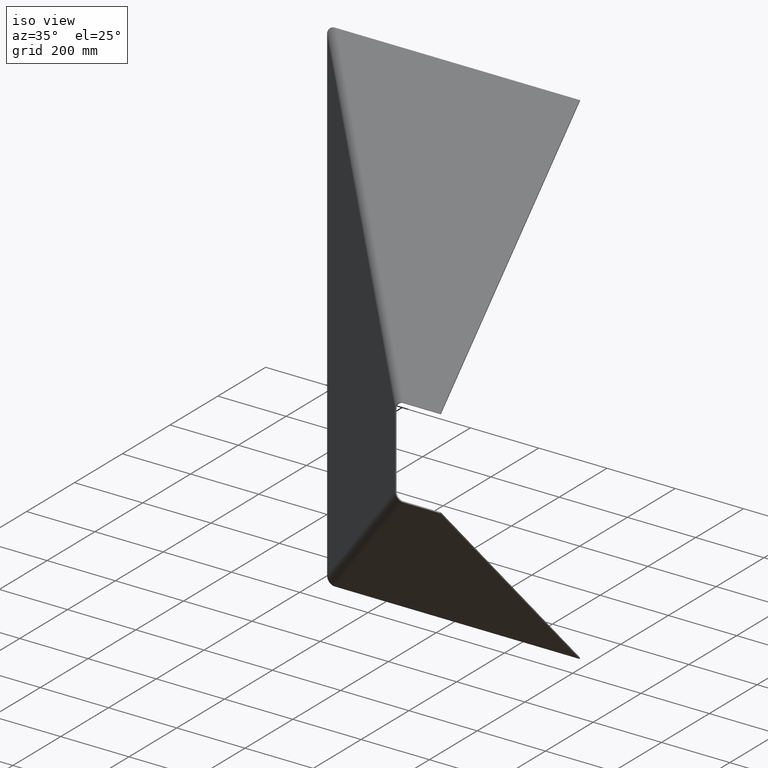
[diagram: clean part render]
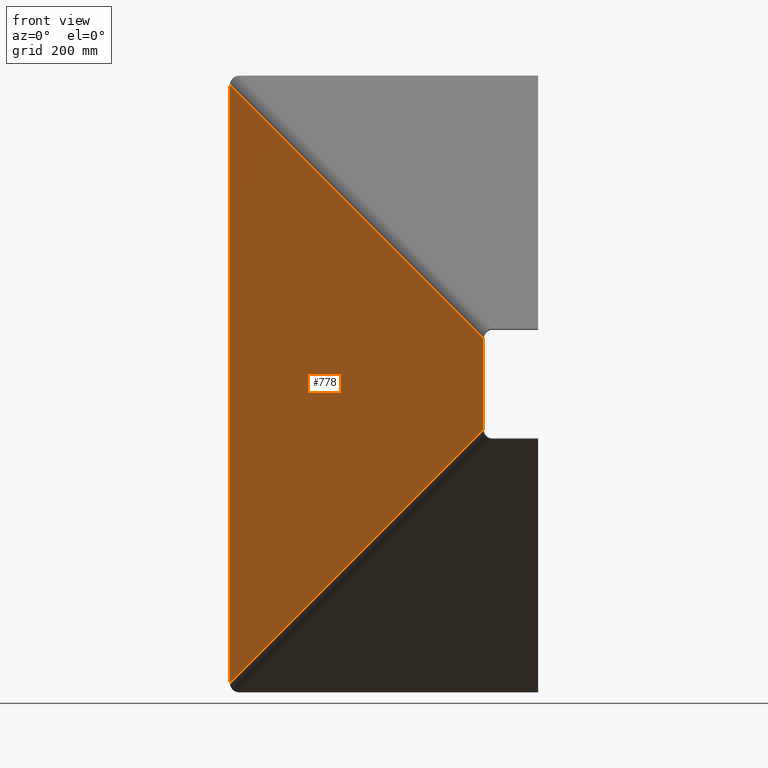
[diagram: tour spotlight — one face highlighted and labeled with its STEP entity id]
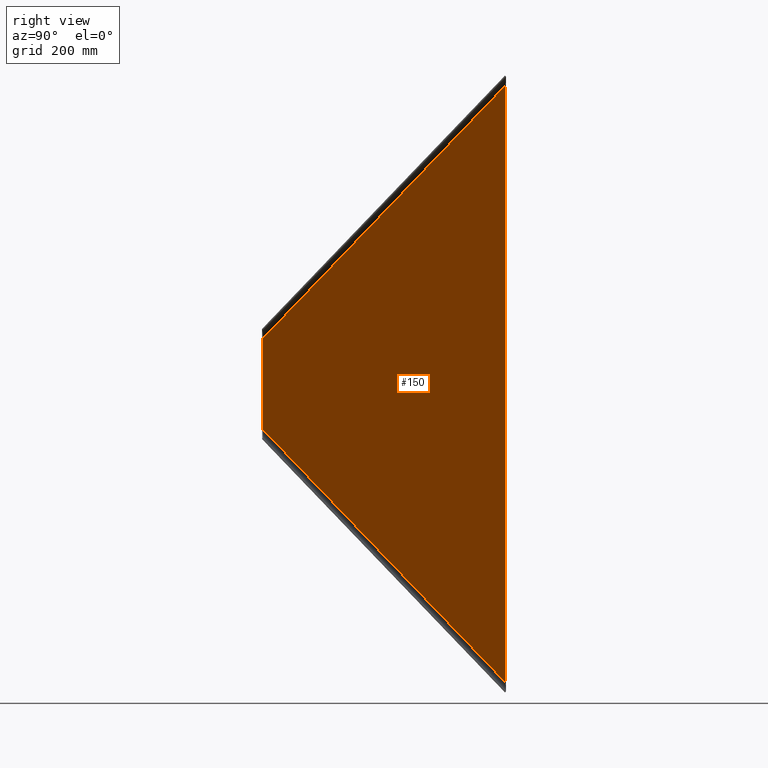
[diagram: tour spotlight — one face highlighted and labeled with its STEP entity id]
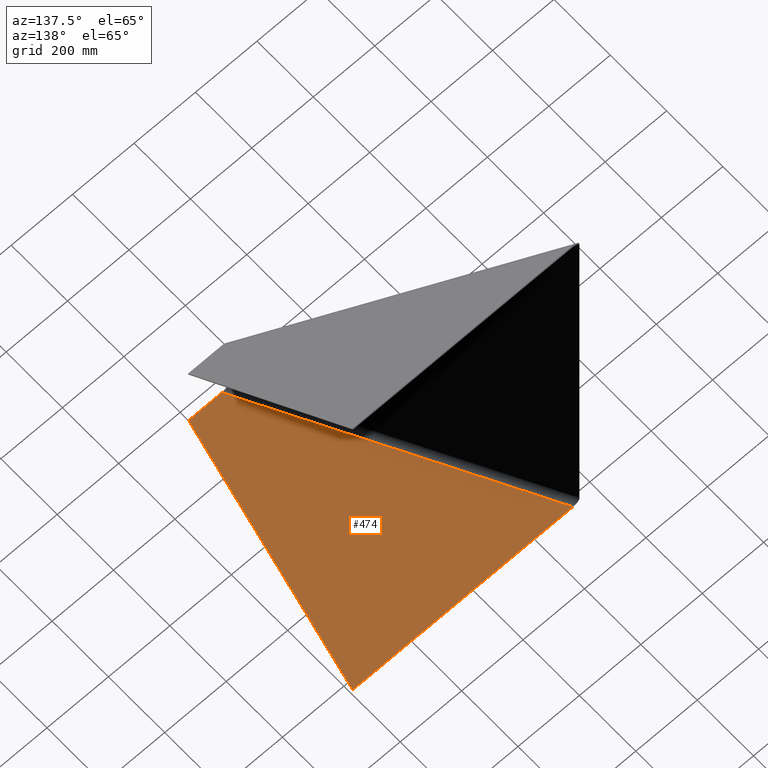
[diagram: tour spotlight — one face highlighted and labeled with its STEP entity id]
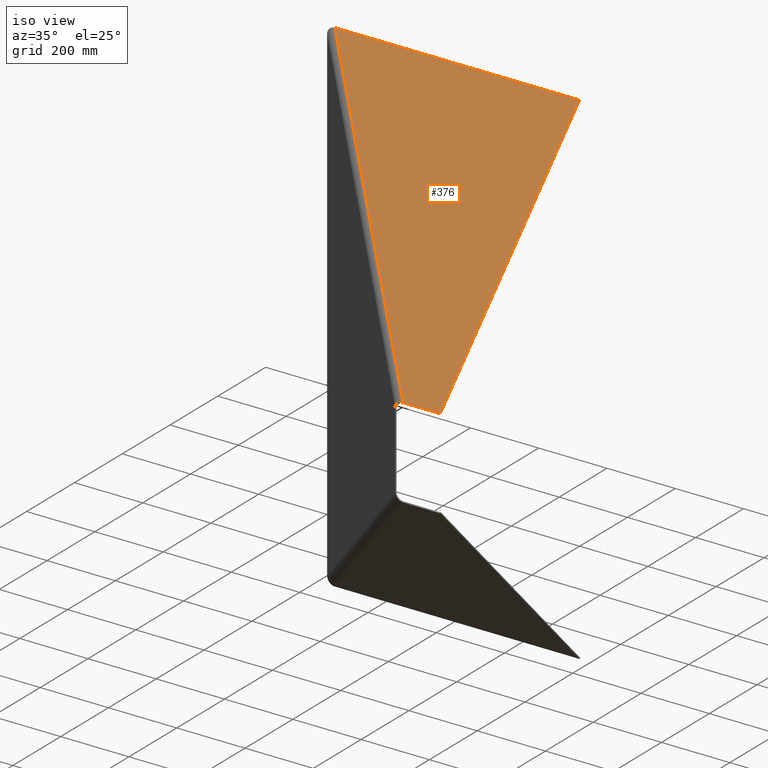
[diagram: tour spotlight — one face highlighted and labeled with its STEP entity id]
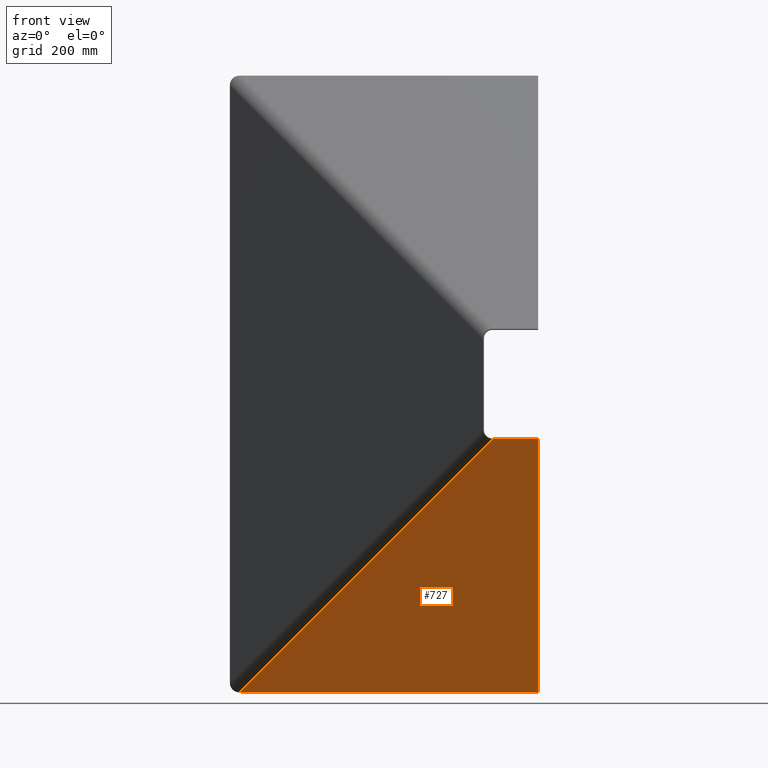
[diagram: tour spotlight — one face highlighted and labeled with its STEP entity id]
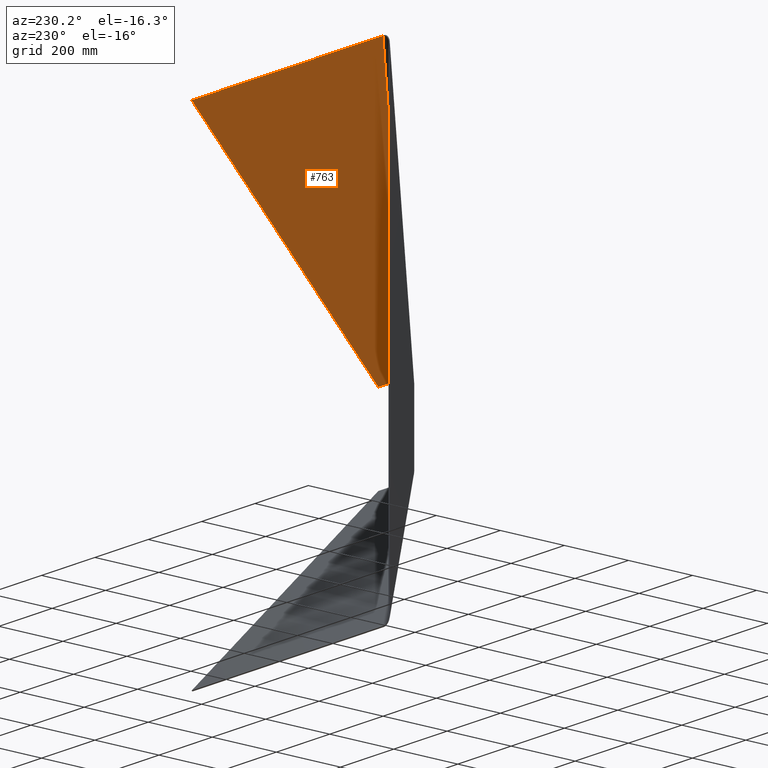
[diagram: tour spotlight — one face highlighted and labeled with its STEP entity id]
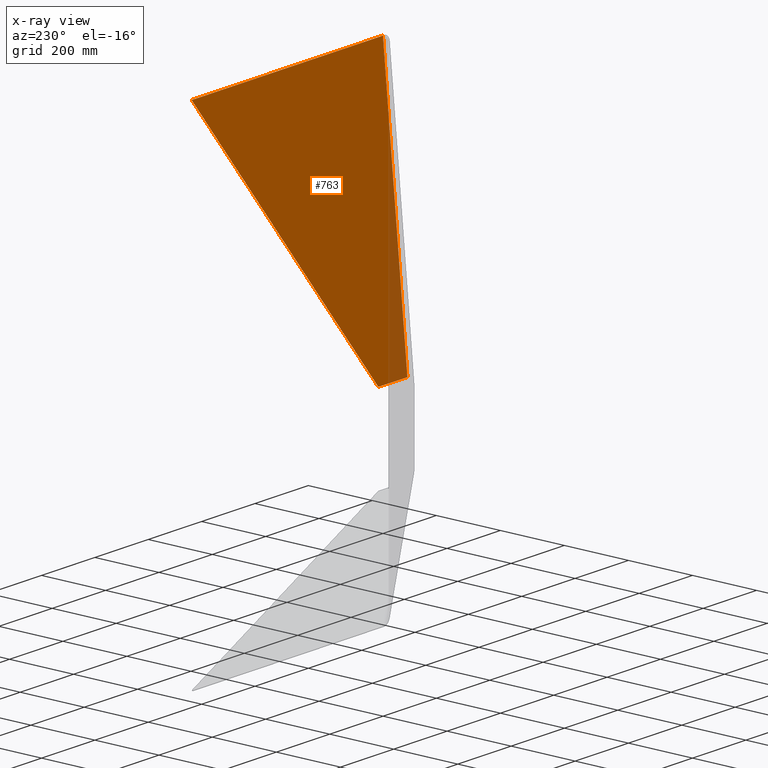
[diagram: x-ray of the same camera — body ghosted, this tour face saturated]
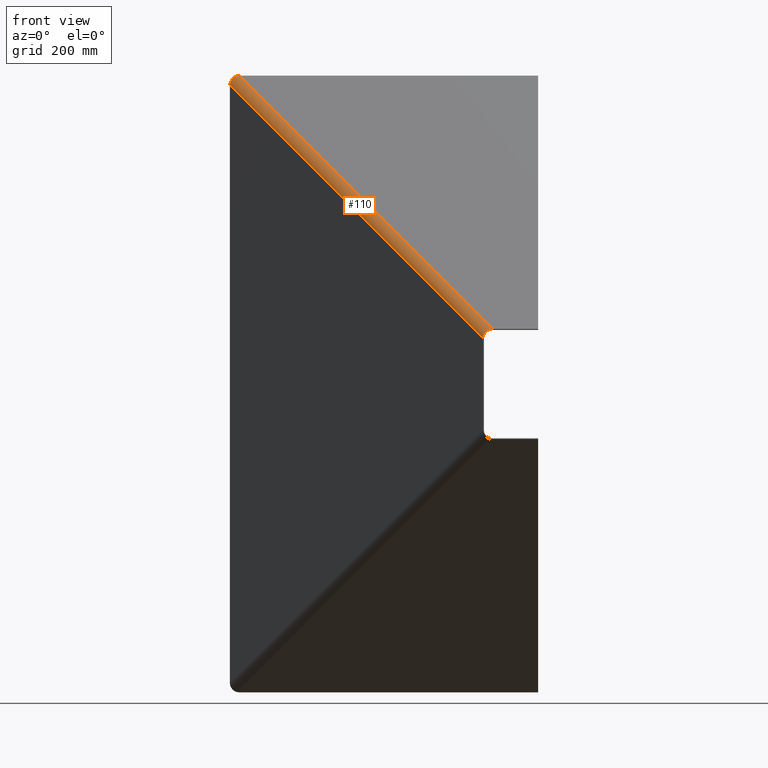
[diagram: tour spotlight — one face highlighted and labeled with its STEP entity id]
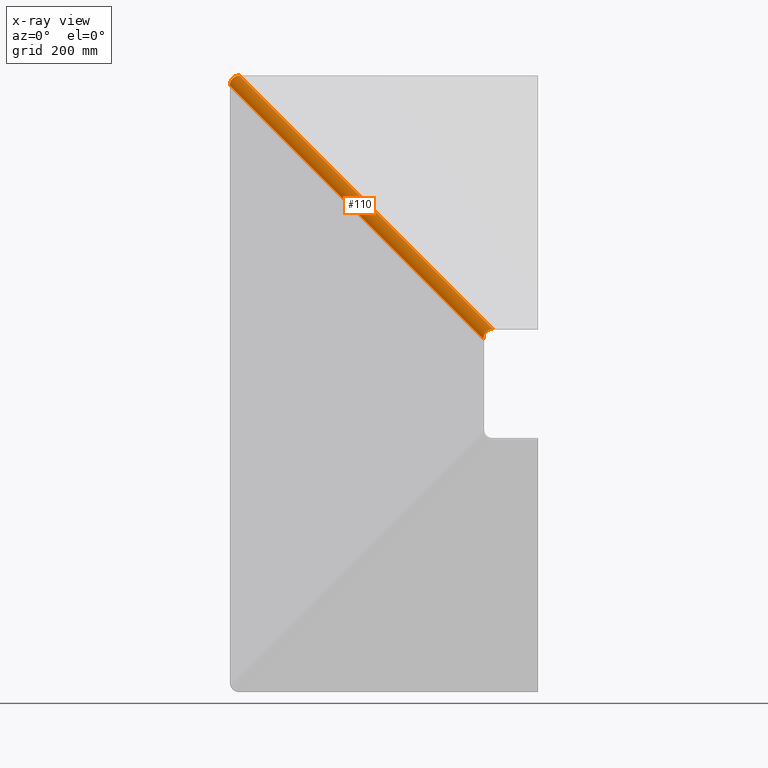
[diagram: x-ray of the same camera — body ghosted, this tour face saturated]
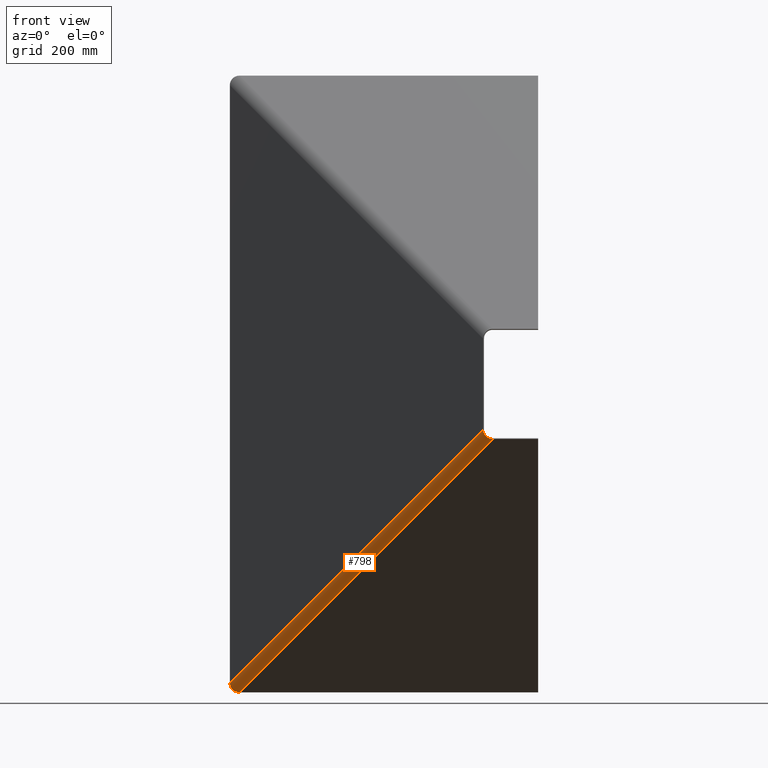
[diagram: tour spotlight — one face highlighted and labeled with its STEP entity id]
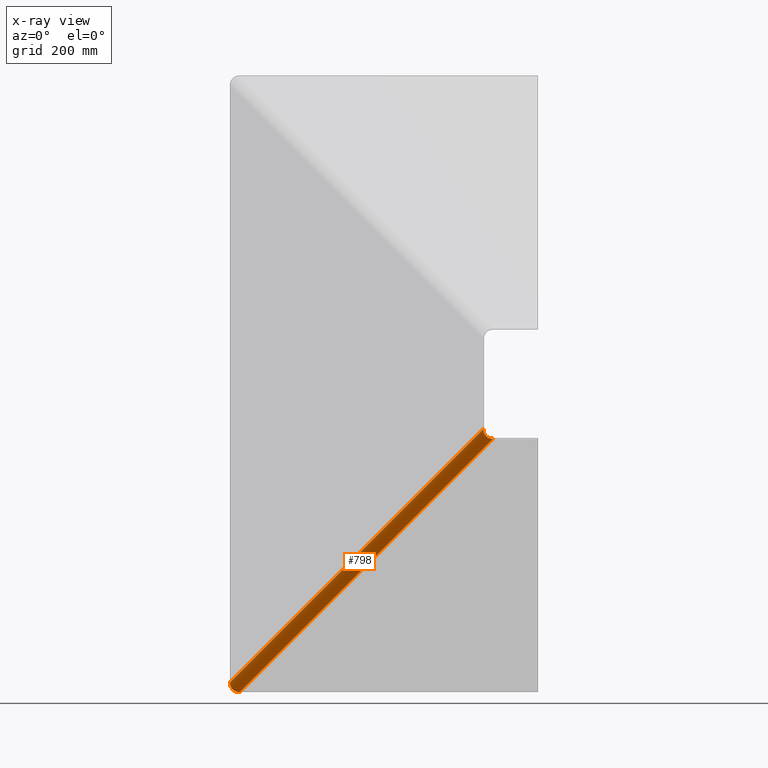
[diagram: x-ray of the same camera — body ghosted, this tour face saturated]
A machine part: a face-by-face anatomy tour. The part has 22 B-rep faces; the first image is the clean iso view, then the 8 largest visible faces are spotlighted one at a time (largest first), each with its STEP entity span.

Face 1 — front view, entity #778. In plain terms, the highlighted planar face has unit normal (0.6921, 0.7218, 0).
Definition (entity closure, byte-faithful):
#10 = ORIENTED_EDGE ( 'NONE', *, *, #79, .F. ) ;
#20 = AXIS2_PLACEMENT_3D ( 'NONE', #682, #731, #457 ) ;
#34 = CARTESIAN_POINT ( 'NONE',  ( -132.0000000000000000, 46.00000000000000000, 109.0000000000000142 ) ) ;
#79 = EDGE_CURVE ( 'NONE', #95, #362, #395, .T. ) ;
#95 = VERTEX_POINT ( 'NONE', #171 ) ;
#111 = CARTESIAN_POINT ( 'NONE',  ( -131.9999999999999716, 46.00000000000000000, -108.9999999999999574 ) ) ;
#125 = DIRECTION ( 'NONE',  ( 0.5852604681659182573, -0.5611954818104119003, 0.5852604681659184793 ) ) ;
#145 = VECTOR ( 'NONE', #201, 1000.000000000000000 ) ;
#171 = CARTESIAN_POINT ( 'NONE',  ( -739.9999999999998863, 629.0000000000000000, 717.0000000000001137 ) ) ;
#189 = CARTESIAN_POINT ( 'NONE',  ( -739.9999999999997726, 629.0000000000000000, 717.0000000000001137 ) ) ;
#201 = DIRECTION ( 'NONE',  ( -1.273191542001326317E-16, -0.000000000000000000, 1.000000000000000000 ) ) ;
#221 = FACE_OUTER_BOUND ( 'NONE', #332, .T. ) ;
#234 = VECTOR ( 'NONE', #125, 1000.000000000000114 ) ;
#262 = DIRECTION ( 'NONE',  ( 0.000000000000000000, 0.000000000000000000, -1.000000000000000000 ) ) ;
#288 = VECTOR ( 'NONE', #600, 1000.000000000000114 ) ;
#332 = EDGE_LOOP ( 'NONE', ( #443, #650, #10, #598 ) ) ;
#337 = CARTESIAN_POINT ( 'NONE',  ( -435.9999999999999432, 337.5000000000000000, 413.0000000000000568 ) ) ;
#359 = VERTEX_POINT ( 'NONE', #111 ) ;
#362 = VERTEX_POINT ( 'NONE', #34 ) ;
#387 = EDGE_CURVE ( 'NONE', #688, #359, #771, .T. ) ;
#395 = LINE ( 'NONE', #337, #288 ) ;
#443 = ORIENTED_EDGE ( 'NONE', *, *, #387, .T. ) ;
#457 = DIRECTION ( 'NONE',  ( -0.7217904954700603559, 0.6921116099655350018, 0.000000000000000000 ) ) ;
#526 = LINE ( 'NONE', #780, #145 ) ;
#548 = VECTOR ( 'NONE', #262, 1000.000000000000000 ) ;
#570 = CARTESIAN_POINT ( 'NONE',  ( -739.9999999999997726, 629.0000000000000000, -717.0000000000000000 ) ) ;
#579 = LINE ( 'NONE', #189, #548 ) ;
#598 = ORIENTED_EDGE ( 'NONE', *, *, #693, .T. ) ;
#600 = DIRECTION ( 'NONE',  ( 0.5852604681659182573, -0.5611954818104119003, -0.5852604681659184793 ) ) ;
#650 = ORIENTED_EDGE ( 'NONE', *, *, #704, .T. ) ;
#682 = CARTESIAN_POINT ( 'NONE',  ( -40.25069867930943701, -41.97671491770176999, 0.000000000000000000 ) ) ;
#688 = VERTEX_POINT ( 'NONE', #768 ) ;
#693 = EDGE_CURVE ( 'NONE', #95, #688, #579, .T. ) ;
#704 = EDGE_CURVE ( 'NONE', #359, #362, #526, .T. ) ;
#731 = DIRECTION ( 'NONE',  ( 0.6921116099655350018, 0.7217904954700603559, 0.000000000000000000 ) ) ;
#768 = CARTESIAN_POINT ( 'NONE',  ( -739.9999999999997726, 629.0000000000000000, -717.0000000000001137 ) ) ;
#771 = LINE ( 'NONE', #570, #234 ) ;
#778 = ADVANCED_FACE ( 'NONE', ( #221 ), #802, .F. ) ;
#780 = CARTESIAN_POINT ( 'NONE',  ( -132.0000000000000000, 46.00000000000000000, 109.0000000000000142 ) ) ;
#802 = PLANE ( 'NONE',  #20 ) ;

Face 2 — right view, entity #150. In plain terms, the highlighted planar face has unit normal (0.6921, 0.7218, 0).
Definition (entity closure, byte-faithful):
#24 = EDGE_CURVE ( 'NONE', #176, #299, #622, .T. ) ;
#50 = CARTESIAN_POINT ( 'NONE',  ( -737.9236651701032770, 631.1653714864102085, 0.000000000000000000 ) ) ;
#75 = CARTESIAN_POINT ( 'NONE',  ( -737.9236651701032770, 631.1653714864100948, -717.0000000000001137 ) ) ;
#83 = ORIENTED_EDGE ( 'NONE', *, *, #24, .F. ) ;
#86 = AXIS2_PLACEMENT_3D ( 'NONE', #558, #303, #495 ) ;
#88 = VERTEX_POINT ( 'NONE', #787 ) ;
#104 = DIRECTION ( 'NONE',  ( -0.000000000000000000, 0.000000000000000000, -1.000000000000000000 ) ) ;
#122 = CARTESIAN_POINT ( 'NONE',  ( -737.9236651701032770, 631.1653714864102085, 717.0000000000001137 ) ) ;
#126 = EDGE_CURVE ( 'NONE', #299, #88, #687, .T. ) ;
#129 = VECTOR ( 'NONE', #627, 1000.000000000000000 ) ;
#134 = CARTESIAN_POINT ( 'NONE',  ( -535.2569985034367619, 436.8320381530768373, 514.3333333333333712 ) ) ;
#139 = EDGE_CURVE ( 'NONE', #151, #176, #164, .T. ) ;
#150 = ADVANCED_FACE ( 'NONE', ( #415 ), #233, .T. ) ;
#151 = VERTEX_POINT ( 'NONE', #752 ) ;
#164 = LINE ( 'NONE', #50, #448 ) ;
#176 = VERTEX_POINT ( 'NONE', #696 ) ;
#217 = CARTESIAN_POINT ( 'NONE',  ( -129.9236651701034191, 48.16537148641010191, -108.9999999999999574 ) ) ;
#233 = PLANE ( 'NONE',  #86 ) ;
#243 = CARTESIAN_POINT ( 'NONE',  ( -129.9236651701034191, 48.16537148641010191, -108.9999999999999574 ) ) ;
#247 = B_SPLINE_CURVE_WITH_KNOTS ( 'NONE', 3,
 ( #122, #134, #713, #323 ),
 .UNSPECIFIED., .F., .F.,
 ( 4, 4 ),
 ( 0.000000000000000000, 1.000000000000000000 ),
 .UNSPECIFIED. ) ;
#277 = ORIENTED_EDGE ( 'NONE', *, *, #126, .F. ) ;
#280 = EDGE_LOOP ( 'NONE', ( #83, #816, #757, #277 ) ) ;
#299 = VERTEX_POINT ( 'NONE', #217 ) ;
#303 = DIRECTION ( 'NONE',  ( 0.6921116099655350018, 0.7217904954700603559, 0.000000000000000000 ) ) ;
#323 = CARTESIAN_POINT ( 'NONE',  ( -129.9236651701034475, 48.16537148641014454, 109.0000000000000142 ) ) ;
#331 = CARTESIAN_POINT ( 'NONE',  ( -332.5903318367699626, 242.4987048197434660, -311.6666666666666288 ) ) ;
#352 = CARTESIAN_POINT ( 'NONE',  ( -129.9236651701034191, 48.16537148641010191, 0.000000000000000000 ) ) ;
#415 = FACE_OUTER_BOUND ( 'NONE', #280, .T. ) ;
#448 = VECTOR ( 'NONE', #104, 1000.000000000000000 ) ;
#495 = DIRECTION ( 'NONE',  ( -0.7217904954700603559, 0.6921116099655350018, 0.000000000000000000 ) ) ;
#558 = CARTESIAN_POINT ( 'NONE',  ( -38.17436384941283478, -39.81134343129158282, 0.000000000000000000 ) ) ;
#622 = B_SPLINE_CURVE_WITH_KNOTS ( 'NONE', 3,
 ( #75, #643, #331, #243 ),
 .UNSPECIFIED., .F., .F.,
 ( 4, 4 ),
 ( 0.000000000000000000, 1.000000000000000000 ),
 .UNSPECIFIED. ) ;
#627 = DIRECTION ( 'NONE',  ( 0.000000000000000000, -0.000000000000000000, 1.000000000000000000 ) ) ;
#643 = CARTESIAN_POINT ( 'NONE',  ( -535.2569985034366482, 436.8320381530768373, -514.3333333333332575 ) ) ;
#647 = EDGE_CURVE ( 'NONE', #151, #88, #247, .T. ) ;
#687 = LINE ( 'NONE', #352, #129 ) ;
#696 = CARTESIAN_POINT ( 'NONE',  ( -737.9236651701032770, 631.1653714864100948, -717.0000000000001137 ) ) ;
#713 = CARTESIAN_POINT ( 'NONE',  ( -332.5903318367700194, 242.4987048197434660, 311.6666666666666856 ) ) ;
#752 = CARTESIAN_POINT ( 'NONE',  ( -737.9236651701032770, 631.1653714864102085, 717.0000000000001137 ) ) ;
#757 = ORIENTED_EDGE ( 'NONE', *, *, #647, .T. ) ;
#787 = CARTESIAN_POINT ( 'NONE',  ( -129.9236651701034475, 48.16537148641014454, 109.0000000000000142 ) ) ;
#816 = ORIENTED_EDGE ( 'NONE', *, *, #139, .F. ) ;

Face 3 — auxiliary view, entity #474. In plain terms, the highlighted planar face has unit normal (0, -0.7218, -0.6921).
Definition (entity closure, byte-faithful):
#29 = ORIENTED_EDGE ( 'NONE', *, *, #98, .F. ) ;
#55 = EDGE_CURVE ( 'NONE', #392, #403, #437, .T. ) ;
#98 = EDGE_CURVE ( 'NONE', #404, #463, #691, .T. ) ;
#100 = ORIENTED_EDGE ( 'NONE', *, *, #224, .T. ) ;
#102 = DIRECTION ( 'NONE',  ( 0.000000000000000000, -0.7217904954700604669, -0.6921116099655350018 ) ) ;
#152 = DIRECTION ( 'NONE',  ( -0.000000000000000000, -0.6921116099655348908, 0.7217904954700603559 ) ) ;
#169 = CARTESIAN_POINT ( 'NONE',  ( -2.220446049250314091E-13, 631.1653714864104359, -737.9236651701035044 ) ) ;
#182 = VECTOR ( 'NONE', #766, 1000.000000000000000 ) ;
#185 = AXIS2_PLACEMENT_3D ( 'NONE', #481, #102, #739 ) ;
#215 = LINE ( 'NONE', #470, #665 ) ;
#224 = EDGE_CURVE ( 'NONE', #404, #403, #493, .T. ) ;
#283 = EDGE_CURVE ( 'NONE', #463, #392, #215, .T. ) ;
#297 = PLANE ( 'NONE',  #185 ) ;
#307 = FACE_OUTER_BOUND ( 'NONE', #380, .T. ) ;
#343 = ORIENTED_EDGE ( 'NONE', *, *, #55, .F. ) ;
#344 = CARTESIAN_POINT ( 'NONE',  ( -514.3333333333331439, 436.8320381530768373, -535.2569985034367619 ) ) ;
#379 = CARTESIAN_POINT ( 'NONE',  ( 0.000000000000000000, 48.16537148641020138, -129.9236651701034475 ) ) ;
#380 = EDGE_LOOP ( 'NONE', ( #543, #29, #100, #343 ) ) ;
#392 = VERTEX_POINT ( 'NONE', #379 ) ;
#403 = VERTEX_POINT ( 'NONE', #582 ) ;
#404 = VERTEX_POINT ( 'NONE', #514 ) ;
#437 = LINE ( 'NONE', #701, #182 ) ;
#461 = CARTESIAN_POINT ( 'NONE',  ( -717.0000000000000000, 631.1653714864104359, -737.9236651701035044 ) ) ;
#463 = VERTEX_POINT ( 'NONE', #169 ) ;
#464 = VECTOR ( 'NONE', #737, 1000.000000000000000 ) ;
#470 = CARTESIAN_POINT ( 'NONE',  ( -2.220446049250314091E-13, -39.81134343129154018, -38.17436384941278504 ) ) ;
#474 = ADVANCED_FACE ( 'NONE', ( #307 ), #297, .F. ) ;
#481 = CARTESIAN_POINT ( 'NONE',  ( 0.000000000000000000, -39.81134343129154018, -38.17436384941278504 ) ) ;
#493 = B_SPLINE_CURVE_WITH_KNOTS ( 'NONE', 3,
 ( #461, #344, #605, #781 ),
 .UNSPECIFIED., .F., .F.,
 ( 4, 4 ),
 ( 0.000000000000000000, 1.000000000000000000 ),
 .UNSPECIFIED. ) ;
#514 = CARTESIAN_POINT ( 'NONE',  ( -717.0000000000000000, 631.1653714864104359, -737.9236651701035044 ) ) ;
#543 = ORIENTED_EDGE ( 'NONE', *, *, #283, .F. ) ;
#550 = CARTESIAN_POINT ( 'NONE',  ( 0.000000000000000000, 631.1653714864104359, -737.9236651701035044 ) ) ;
#582 = CARTESIAN_POINT ( 'NONE',  ( -109.0000000000000426, 48.16537148641020138, -129.9236651701034475 ) ) ;
#605 = CARTESIAN_POINT ( 'NONE',  ( -311.6666666666665151, 242.4987048197434660, -332.5903318367700763 ) ) ;
#665 = VECTOR ( 'NONE', #152, 1000.000000000000114 ) ;
#691 = LINE ( 'NONE', #550, #464 ) ;
#701 = CARTESIAN_POINT ( 'NONE',  ( 0.000000000000000000, 48.16537148641020138, -129.9236651701034475 ) ) ;
#737 = DIRECTION ( 'NONE',  ( 1.000000000000000000, 0.000000000000000000, 0.000000000000000000 ) ) ;
#739 = DIRECTION ( 'NONE',  ( 0.000000000000000000, 0.6921116099655348908, -0.7217904954700603559 ) ) ;
#766 = DIRECTION ( 'NONE',  ( -1.000000000000000000, -0.000000000000000000, -0.000000000000000000 ) ) ;
#781 = CARTESIAN_POINT ( 'NONE',  ( -109.0000000000000426, 48.16537148641020138, -129.9236651701034475 ) ) ;

Face 4 — iso view, entity #376. In plain terms, the highlighted planar face has unit normal (0, -0.7218, 0.6921).
Definition (entity closure, byte-faithful):
#17 = DIRECTION ( 'NONE',  ( 1.000000000000000000, 0.000000000000000000, 0.000000000000000000 ) ) ;
#23 = LINE ( 'NONE', #750, #406 ) ;
#101 = VECTOR ( 'NONE', #428, 1000.000000000000114 ) ;
#107 = DIRECTION ( 'NONE',  ( 0.5852604681659181463, -0.5611954818104117892, -0.5852604681659184793 ) ) ;
#113 = LINE ( 'NONE', #372, #320 ) ;
#115 = CARTESIAN_POINT ( 'NONE',  ( 0.000000000000000000, -41.97671491770171315, 40.25069867930936596 ) ) ;
#156 = FACE_OUTER_BOUND ( 'NONE', #595, .T. ) ;
#161 = EDGE_CURVE ( 'NONE', #532, #496, #756, .T. ) ;
#172 = ORIENTED_EDGE ( 'NONE', *, *, #614, .T. ) ;
#175 = CARTESIAN_POINT ( 'NONE',  ( -9.307315673519885144E-14, 629.0000000000000000, 740.0000000000000000 ) ) ;
#252 = DIRECTION ( 'NONE',  ( 0.000000000000000000, -0.6921116099655347798, -0.7217904954700604669 ) ) ;
#263 = ORIENTED_EDGE ( 'NONE', *, *, #161, .F. ) ;
#282 = PLANE ( 'NONE',  #638 ) ;
#285 = ORIENTED_EDGE ( 'NONE', *, *, #586, .T. ) ;
#320 = VECTOR ( 'NONE', #641, 1000.000000000000000 ) ;
#342 = EDGE_CURVE ( 'NONE', #505, #524, #23, .T. ) ;
#370 = VECTOR ( 'NONE', #17, 1000.000000000000000 ) ;
#372 = CARTESIAN_POINT ( 'NONE',  ( -9.307315673519885144E-14, 629.0000000000000000, 740.0000000000000000 ) ) ;
#376 = ADVANCED_FACE ( 'NONE', ( #156 ), #282, .T. ) ;
#406 = VECTOR ( 'NONE', #107, 1000.000000000000000 ) ;
#422 = CARTESIAN_POINT ( 'NONE',  ( -716.9999999999998863, 629.0000000000000000, 740.0000000000002274 ) ) ;
#428 = DIRECTION ( 'NONE',  ( 1.104923024915489591E-16, -0.6921116099655348908, -0.7217904954700603559 ) ) ;
#433 = DIRECTION ( 'NONE',  ( 0.000000000000000000, -0.7217904954700604669, 0.6921116099655347798 ) ) ;
#446 = LINE ( 'NONE', #775, #370 ) ;
#468 = ORIENTED_EDGE ( 'NONE', *, *, #342, .T. ) ;
#496 = VERTEX_POINT ( 'NONE', #749 ) ;
#505 = VERTEX_POINT ( 'NONE', #422 ) ;
#524 = VERTEX_POINT ( 'NONE', #560 ) ;
#532 = VERTEX_POINT ( 'NONE', #758 ) ;
#560 = CARTESIAN_POINT ( 'NONE',  ( -109.0000000000000142, 46.00000000000000000, 132.0000000000000000 ) ) ;
#586 = EDGE_CURVE ( 'NONE', #532, #505, #113, .T. ) ;
#595 = EDGE_LOOP ( 'NONE', ( #468, #172, #263, #285 ) ) ;
#614 = EDGE_CURVE ( 'NONE', #524, #496, #446, .T. ) ;
#638 = AXIS2_PLACEMENT_3D ( 'NONE', #115, #433, #252 ) ;
#641 = DIRECTION ( 'NONE',  ( -1.000000000000000000, 0.000000000000000000, 3.096856414575054289E-16 ) ) ;
#749 = CARTESIAN_POINT ( 'NONE',  ( 2.465190328815661892E-29, 45.99999999999981526, 131.9999999999998863 ) ) ;
#750 = CARTESIAN_POINT ( 'NONE',  ( -716.9999999999998863, 629.0000000000000000, 740.0000000000002274 ) ) ;
#756 = LINE ( 'NONE', #175, #101 ) ;
#758 = CARTESIAN_POINT ( 'NONE',  ( -9.307315673519885144E-14, 629.0000000000000000, 740.0000000000000000 ) ) ;
#775 = CARTESIAN_POINT ( 'NONE',  ( -109.0000000000000142, 46.00000000000000000, 132.0000000000000000 ) ) ;

Face 5 — front view, entity #727. In plain terms, the highlighted planar face has unit normal (0, -0.7218, -0.6921).
Definition (entity closure, byte-faithful):
#22 = ORIENTED_EDGE ( 'NONE', *, *, #301, .T. ) ;
#31 = CARTESIAN_POINT ( 'NONE',  ( -1.849216666712503261E-13, 629.0000000000000000, -740.0000000000000000 ) ) ;
#137 = PLANE ( 'NONE',  #723 ) ;
#141 = CARTESIAN_POINT ( 'NONE',  ( -108.9999999999999858, 46.00000000000000000, -132.0000000000000000 ) ) ;
#149 = CARTESIAN_POINT ( 'NONE',  ( -412.9999999999998863, 337.5000000000000000, -436.0000000000000000 ) ) ;
#153 = VECTOR ( 'NONE', #608, 1000.000000000000114 ) ;
#155 = ORIENTED_EDGE ( 'NONE', *, *, #275, .F. ) ;
#203 = LINE ( 'NONE', #31, #803 ) ;
#225 = LINE ( 'NONE', #804, #734 ) ;
#235 = ORIENTED_EDGE ( 'NONE', *, *, #594, .T. ) ;
#260 = LINE ( 'NONE', #141, #509 ) ;
#275 = EDGE_CURVE ( 'NONE', #715, #634, #538, .T. ) ;
#301 = EDGE_CURVE ( 'NONE', #717, #634, #260, .T. ) ;
#314 = EDGE_CURVE ( 'NONE', #624, #717, #203, .T. ) ;
#348 = DIRECTION ( 'NONE',  ( -1.000000000000000000, -0.000000000000000000, -0.000000000000000000 ) ) ;
#378 = DIRECTION ( 'NONE',  ( 0.000000000000000000, -0.7217904954700604669, -0.6921116099655350018 ) ) ;
#381 = CARTESIAN_POINT ( 'NONE',  ( -716.9999999999997726, 629.0000000000000000, -740.0000000000000000 ) ) ;
#391 = DIRECTION ( 'NONE',  ( 0.000000000000000000, 0.6921116099655348908, -0.7217904954700603559 ) ) ;
#416 = EDGE_LOOP ( 'NONE', ( #707, #22, #155, #235 ) ) ;
#453 = CARTESIAN_POINT ( 'NONE',  ( 0.000000000000000000, 46.00000000000000000, -132.0000000000000000 ) ) ;
#509 = VECTOR ( 'NONE', #348, 1000.000000000000000 ) ;
#529 = DIRECTION ( 'NONE',  ( 2.195307588976827744E-16, -0.6921116099655348908, 0.7217904954700603559 ) ) ;
#538 = LINE ( 'NONE', #149, #153 ) ;
#585 = CARTESIAN_POINT ( 'NONE',  ( 0.000000000000000000, -41.97671491770172736, -40.25069867930938727 ) ) ;
#594 = EDGE_CURVE ( 'NONE', #715, #624, #225, .T. ) ;
#608 = DIRECTION ( 'NONE',  ( 0.5852604681659182573, -0.5611954818104119003, 0.5852604681659184793 ) ) ;
#624 = VERTEX_POINT ( 'NONE', #710 ) ;
#634 = VERTEX_POINT ( 'NONE', #655 ) ;
#655 = CARTESIAN_POINT ( 'NONE',  ( -108.9999999999999858, 46.00000000000000000, -132.0000000000000000 ) ) ;
#680 = DIRECTION ( 'NONE',  ( 1.000000000000000000, 0.000000000000000000, 0.000000000000000000 ) ) ;
#707 = ORIENTED_EDGE ( 'NONE', *, *, #314, .T. ) ;
#710 = CARTESIAN_POINT ( 'NONE',  ( -2.220446049250313081E-13, 629.0000000000000000, -740.0000000000000000 ) ) ;
#715 = VERTEX_POINT ( 'NONE', #381 ) ;
#716 = FACE_OUTER_BOUND ( 'NONE', #416, .T. ) ;
#717 = VERTEX_POINT ( 'NONE', #453 ) ;
#723 = AXIS2_PLACEMENT_3D ( 'NONE', #585, #378, #391 ) ;
#727 = ADVANCED_FACE ( 'NONE', ( #716 ), #137, .T. ) ;
#734 = VECTOR ( 'NONE', #680, 1000.000000000000000 ) ;
#803 = VECTOR ( 'NONE', #529, 1000.000000000000114 ) ;
#804 = CARTESIAN_POINT ( 'NONE',  ( -716.9999999999997726, 629.0000000000000000, -740.0000000000000000 ) ) ;

Face 6 — auxiliary view, entity #763. An x-ray twin of the same camera follows (body ghosted, this face saturated) — the face is partly hidden behind the body. In plain terms, the highlighted planar face has unit normal (0, -0.7218, 0.6921).
Definition (entity closure, byte-faithful):
#13 = EDGE_LOOP ( 'NONE', ( #606, #121, #480, #705 ) ) ;
#46 = VERTEX_POINT ( 'NONE', #578 ) ;
#52 = CARTESIAN_POINT ( 'NONE',  ( 0.000000000000000000, 48.16537148641020138, 129.9236651701034475 ) ) ;
#59 = CARTESIAN_POINT ( 'NONE',  ( -717.0000000000001137, 631.1653714864103222, 737.9236651701036180 ) ) ;
#93 = PLANE ( 'NONE',  #250 ) ;
#121 = ORIENTED_EDGE ( 'NONE', *, *, #790, .F. ) ;
#138 = VERTEX_POINT ( 'NONE', #295 ) ;
#154 = DIRECTION ( 'NONE',  ( 0.000000000000000000, -0.7217904954700604669, 0.6921116099655347798 ) ) ;
#162 = CARTESIAN_POINT ( 'NONE',  ( -109.0000000000000711, 48.16537148641020138, 129.9236651701034475 ) ) ;
#198 = VECTOR ( 'NONE', #408, 1000.000000000000000 ) ;
#205 = FACE_OUTER_BOUND ( 'NONE', #13, .T. ) ;
#207 = DIRECTION ( 'NONE',  ( 0.000000000000000000, -0.6921116099655347798, -0.7217904954700604669 ) ) ;
#214 = EDGE_CURVE ( 'NONE', #46, #671, #355, .T. ) ;
#229 = CARTESIAN_POINT ( 'NONE',  ( -9.307315673519890192E-14, -39.81134343129152597, 38.17436384941276373 ) ) ;
#248 = CARTESIAN_POINT ( 'NONE',  ( 2.465190328815663013E-29, 48.16537148641006638, 129.9236651701032770 ) ) ;
#250 = AXIS2_PLACEMENT_3D ( 'NONE', #788, #154, #207 ) ;
#279 = B_SPLINE_CURVE_WITH_KNOTS ( 'NONE', 3,
 ( #59, #553, #569, #364 ),
 .UNSPECIFIED., .F., .F.,
 ( 4, 4 ),
 ( 0.000000000000000000, 1.000000000000000000 ),
 .UNSPECIFIED. ) ;
#295 = CARTESIAN_POINT ( 'NONE',  ( -717.0000000000001137, 631.1653714864103222, 737.9236651701036180 ) ) ;
#345 = VERTEX_POINT ( 'NONE', #162 ) ;
#355 = LINE ( 'NONE', #229, #583 ) ;
#364 = CARTESIAN_POINT ( 'NONE',  ( -109.0000000000000711, 48.16537148641020138, 129.9236651701034475 ) ) ;
#408 = DIRECTION ( 'NONE',  ( -1.000000000000000000, -0.000000000000000000, -0.000000000000000000 ) ) ;
#475 = VECTOR ( 'NONE', #689, 1000.000000000000000 ) ;
#480 = ORIENTED_EDGE ( 'NONE', *, *, #214, .T. ) ;
#486 = LINE ( 'NONE', #52, #475 ) ;
#500 = EDGE_CURVE ( 'NONE', #345, #671, #486, .T. ) ;
#518 = EDGE_CURVE ( 'NONE', #138, #345, #279, .T. ) ;
#553 = CARTESIAN_POINT ( 'NONE',  ( -514.3333333333332575, 436.8320381530768373, 535.2569985034368756 ) ) ;
#569 = CARTESIAN_POINT ( 'NONE',  ( -311.6666666666666288, 242.4987048197434660, 332.5903318367701331 ) ) ;
#578 = CARTESIAN_POINT ( 'NONE',  ( -9.307315673519890192E-14, 631.1653714864102085, 737.9236651701035044 ) ) ;
#583 = VECTOR ( 'NONE', #729, 1000.000000000000114 ) ;
#601 = CARTESIAN_POINT ( 'NONE',  ( 0.000000000000000000, 631.1653714864102085, 737.9236651701035044 ) ) ;
#606 = ORIENTED_EDGE ( 'NONE', *, *, #518, .F. ) ;
#671 = VERTEX_POINT ( 'NONE', #248 ) ;
#689 = DIRECTION ( 'NONE',  ( 1.000000000000000000, 0.000000000000000000, 0.000000000000000000 ) ) ;
#705 = ORIENTED_EDGE ( 'NONE', *, *, #500, .F. ) ;
#729 = DIRECTION ( 'NONE',  ( 0.000000000000000000, -0.6921116099655347798, -0.7217904954700604669 ) ) ;
#747 = LINE ( 'NONE', #601, #198 ) ;
#763 = ADVANCED_FACE ( 'NONE', ( #205 ), #93, .F. ) ;
#788 = CARTESIAN_POINT ( 'NONE',  ( 0.000000000000000000, -39.81134343129152597, 38.17436384941276373 ) ) ;
#790 = EDGE_CURVE ( 'NONE', #46, #138, #747, .T. ) ;

Face 7 — front view, entity #110. An x-ray twin of the same camera follows (body ghosted, this face saturated) — the face is partly hidden behind the body. In plain terms, the highlighted face is a freeform B-spline surface patch.
Definition (entity closure, byte-faithful):
#23 = LINE ( 'NONE', #750, #406 ) ;
#34 = CARTESIAN_POINT ( 'NONE',  ( -132.0000000000000000, 46.00000000000000000, 109.0000000000000142 ) ) ;
#57 = ORIENTED_EDGE ( 'NONE', *, *, #342, .F. ) ;
#76 = CARTESIAN_POINT ( 'NONE',  ( -121.6940452282313032, 46.00000000000000000, 132.0000000000000000 ) ) ;
#79 = EDGE_CURVE ( 'NONE', #95, #362, #395, .T. ) ;
#94 = CARTESIAN_POINT ( 'NONE',  ( -132.0000000000000000, 46.00000000000000000, 109.0000000000000142 ) ) ;
#95 = VERTEX_POINT ( 'NONE', #171 ) ;
#107 = DIRECTION ( 'NONE',  ( 0.5852604681659181463, -0.5611954818104117892, -0.5852604681659184793 ) ) ;
#110 = ADVANCED_FACE ( 'NONE', ( #819 ), #743, .T. ) ;
#171 = CARTESIAN_POINT ( 'NONE',  ( -739.9999999999998863, 629.0000000000000000, 717.0000000000001137 ) ) ;
#184 = CARTESIAN_POINT ( 'NONE',  ( -132.0000000000000000, 46.00000000000000000, 109.0000000000000142 ) ) ;
#193 = B_SPLINE_CURVE_WITH_KNOTS ( 'NONE', 3,
 ( #801, #219, #476, #735 ),
 .UNSPECIFIED., .F., .F.,
 ( 4, 4 ),
 ( 0.000000000000000000, 1.000000000000000000 ),
 .UNSPECIFIED. ) ;
#219 = CARTESIAN_POINT ( 'NONE',  ( -729.6940452282311753, 629.0000000000000000, 740.0000000000001137 ) ) ;
#288 = VECTOR ( 'NONE', #600, 1000.000000000000114 ) ;
#337 = CARTESIAN_POINT ( 'NONE',  ( -435.9999999999999432, 337.5000000000000000, 413.0000000000000568 ) ) ;
#342 = EDGE_CURVE ( 'NONE', #505, #524, #23, .T. ) ;
#362 = VERTEX_POINT ( 'NONE', #34 ) ;
#363 = EDGE_CURVE ( 'NONE', #505, #95, #193, .T. ) ;
#395 = LINE ( 'NONE', #337, #288 ) ;
#406 = VECTOR ( 'NONE', #107, 1000.000000000000000 ) ;
#421 = CARTESIAN_POINT ( 'NONE',  ( -716.9999999999998863, 629.0000000000000000, 740.0000000000001137 ) ) ;
#422 = CARTESIAN_POINT ( 'NONE',  ( -716.9999999999998863, 629.0000000000000000, 740.0000000000002274 ) ) ;
#476 = CARTESIAN_POINT ( 'NONE',  ( -739.9999999999998863, 629.0000000000000000, 729.6940452282314027 ) ) ;
#478 = CARTESIAN_POINT ( 'NONE',  ( -109.0000000000000142, 46.00000000000000000, 132.0000000000000000 ) ) ;
#505 = VERTEX_POINT ( 'NONE', #422 ) ;
#510 = EDGE_LOOP ( 'NONE', ( #521, #820, #567, #57 ) ) ;
#516 = B_SPLINE_CURVE_WITH_KNOTS ( 'NONE', 3,
 ( #184, #659, #76, #649 ),
 .UNSPECIFIED., .F., .F.,
 ( 4, 4 ),
 ( 0.000000000000000000, 1.000000000000000000 ),
 .UNSPECIFIED. ) ;
#521 = ORIENTED_EDGE ( 'NONE', *, *, #363, .T. ) ;
#524 = VERTEX_POINT ( 'NONE', #560 ) ;
#560 = CARTESIAN_POINT ( 'NONE',  ( -109.0000000000000142, 46.00000000000000000, 132.0000000000000000 ) ) ;
#562 = CARTESIAN_POINT ( 'NONE',  ( -132.0000000000000000, 46.00000000000000000, 121.6940452282313032 ) ) ;
#567 = ORIENTED_EDGE ( 'NONE', *, *, #733, .T. ) ;
#600 = DIRECTION ( 'NONE',  ( 0.5852604681659182573, -0.5611954818104119003, -0.5852604681659184793 ) ) ;
#616 = CARTESIAN_POINT ( 'NONE',  ( -729.6940452282311753, 629.0000000000000000, 740.0000000000001137 ) ) ;
#649 = CARTESIAN_POINT ( 'NONE',  ( -109.0000000000000142, 46.00000000000000000, 132.0000000000000000 ) ) ;
#659 = CARTESIAN_POINT ( 'NONE',  ( -132.0000000000000000, 46.00000000000000000, 121.6940452282313032 ) ) ;
#678 = CARTESIAN_POINT ( 'NONE',  ( -739.9999999999998863, 629.0000000000000000, 729.6940452282314027 ) ) ;
#733 = EDGE_CURVE ( 'NONE', #362, #524, #516, .T. ) ;
#735 = CARTESIAN_POINT ( 'NONE',  ( -739.9999999999998863, 629.0000000000000000, 717.0000000000001137 ) ) ;
#742 = CARTESIAN_POINT ( 'NONE',  ( -739.9999999999998863, 629.0000000000000000, 717.0000000000001137 ) ) ;
#743 = B_SPLINE_SURFACE_WITH_KNOTS ( 'NONE', 3, 1, ( 
 ( #421, #478 ),
 ( #616, #808 ),
 ( #678, #562 ),
 ( #742, #94 ) ),
 .UNSPECIFIED., .F., .F., .F.,
 ( 4, 4 ),
 ( 2, 2 ),
 ( 0.000000000000000000, 1.000000000000000000 ),
 ( 0.000000000000000000, 1.000000000000000000 ),
 .UNSPECIFIED. ) ;
#750 = CARTESIAN_POINT ( 'NONE',  ( -716.9999999999998863, 629.0000000000000000, 740.0000000000002274 ) ) ;
#801 = CARTESIAN_POINT ( 'NONE',  ( -716.9999999999998863, 629.0000000000000000, 740.0000000000002274 ) ) ;
#808 = CARTESIAN_POINT ( 'NONE',  ( -121.6940452282313032, 46.00000000000000000, 132.0000000000000000 ) ) ;
#819 = FACE_OUTER_BOUND ( 'NONE', #510, .T. ) ;
#820 = ORIENTED_EDGE ( 'NONE', *, *, #79, .T. ) ;

Face 8 — front view, entity #798. An x-ray twin of the same camera follows (body ghosted, this face saturated) — the face is partly hidden behind the body. In plain terms, the highlighted face is a freeform B-spline surface patch.
Definition (entity closure, byte-faithful):
#2 = B_SPLINE_SURFACE_WITH_KNOTS ( 'NONE', 3, 1, ( 
 ( #35, #477 ),
 ( #782, #807 ),
 ( #284, #25 ),
 ( #351, #82 ) ),
 .UNSPECIFIED., .F., .F., .F.,
 ( 4, 4 ),
 ( 2, 2 ),
 ( 0.000000000000000000, 1.000000000000000000 ),
 ( 0.000000000000000000, 1.000000000000000000 ),
 .UNSPECIFIED. ) ;
#25 = CARTESIAN_POINT ( 'NONE',  ( -121.6940452282312748, 46.00000000000000000, -132.0000000000000000 ) ) ;
#35 = CARTESIAN_POINT ( 'NONE',  ( -739.9999999999997726, 629.0000000000000000, -717.0000000000000000 ) ) ;
#82 = CARTESIAN_POINT ( 'NONE',  ( -108.9999999999999858, 46.00000000000000000, -132.0000000000000000 ) ) ;
#111 = CARTESIAN_POINT ( 'NONE',  ( -131.9999999999999716, 46.00000000000000000, -108.9999999999999574 ) ) ;
#125 = DIRECTION ( 'NONE',  ( 0.5852604681659182573, -0.5611954818104119003, 0.5852604681659184793 ) ) ;
#149 = CARTESIAN_POINT ( 'NONE',  ( -412.9999999999998863, 337.5000000000000000, -436.0000000000000000 ) ) ;
#153 = VECTOR ( 'NONE', #608, 1000.000000000000114 ) ;
#206 = CARTESIAN_POINT ( 'NONE',  ( -121.6940452282312748, 46.00000000000000000, -132.0000000000000000 ) ) ;
#234 = VECTOR ( 'NONE', #125, 1000.000000000000114 ) ;
#238 = EDGE_CURVE ( 'NONE', #634, #359, #471, .T. ) ;
#271 = CARTESIAN_POINT ( 'NONE',  ( -739.9999999999997726, 629.0000000000000000, -729.6940452282312890 ) ) ;
#275 = EDGE_CURVE ( 'NONE', #715, #634, #538, .T. ) ;
#284 = CARTESIAN_POINT ( 'NONE',  ( -729.6940452282310616, 629.0000000000000000, -740.0000000000000000 ) ) ;
#296 = ORIENTED_EDGE ( 'NONE', *, *, #814, .T. ) ;
#310 = ORIENTED_EDGE ( 'NONE', *, *, #238, .T. ) ;
#341 = CARTESIAN_POINT ( 'NONE',  ( -131.9999999999999716, 46.00000000000000000, -108.9999999999999574 ) ) ;
#351 = CARTESIAN_POINT ( 'NONE',  ( -716.9999999999997726, 629.0000000000000000, -740.0000000000000000 ) ) ;
#359 = VERTEX_POINT ( 'NONE', #111 ) ;
#381 = CARTESIAN_POINT ( 'NONE',  ( -716.9999999999997726, 629.0000000000000000, -740.0000000000000000 ) ) ;
#387 = EDGE_CURVE ( 'NONE', #688, #359, #771, .T. ) ;
#471 = B_SPLINE_CURVE_WITH_KNOTS ( 'NONE', 3,
 ( #721, #206, #472, #341 ),
 .UNSPECIFIED., .F., .F.,
 ( 4, 4 ),
 ( 0.000000000000000000, 1.000000000000000000 ),
 .UNSPECIFIED. ) ;
#472 = CARTESIAN_POINT ( 'NONE',  ( -131.9999999999999716, 46.00000000000000000, -121.6940452282313032 ) ) ;
#477 = CARTESIAN_POINT ( 'NONE',  ( -131.9999999999999716, 46.00000000000000000, -109.0000000000000142 ) ) ;
#501 = EDGE_LOOP ( 'NONE', ( #296, #592, #310, #679 ) ) ;
#536 = FACE_OUTER_BOUND ( 'NONE', #501, .T. ) ;
#538 = LINE ( 'NONE', #149, #153 ) ;
#545 = CARTESIAN_POINT ( 'NONE',  ( -739.9999999999997726, 629.0000000000000000, -717.0000000000001137 ) ) ;
#570 = CARTESIAN_POINT ( 'NONE',  ( -739.9999999999997726, 629.0000000000000000, -717.0000000000000000 ) ) ;
#592 = ORIENTED_EDGE ( 'NONE', *, *, #275, .T. ) ;
#608 = DIRECTION ( 'NONE',  ( 0.5852604681659182573, -0.5611954818104119003, 0.5852604681659184793 ) ) ;
#615 = CARTESIAN_POINT ( 'NONE',  ( -716.9999999999997726, 629.0000000000000000, -740.0000000000000000 ) ) ;
#634 = VERTEX_POINT ( 'NONE', #655 ) ;
#655 = CARTESIAN_POINT ( 'NONE',  ( -108.9999999999999858, 46.00000000000000000, -132.0000000000000000 ) ) ;
#679 = ORIENTED_EDGE ( 'NONE', *, *, #387, .F. ) ;
#688 = VERTEX_POINT ( 'NONE', #768 ) ;
#715 = VERTEX_POINT ( 'NONE', #381 ) ;
#721 = CARTESIAN_POINT ( 'NONE',  ( -108.9999999999999858, 46.00000000000000000, -132.0000000000000000 ) ) ;
#736 = CARTESIAN_POINT ( 'NONE',  ( -729.6940452282310616, 629.0000000000000000, -740.0000000000000000 ) ) ;
#768 = CARTESIAN_POINT ( 'NONE',  ( -739.9999999999997726, 629.0000000000000000, -717.0000000000001137 ) ) ;
#771 = LINE ( 'NONE', #570, #234 ) ;
#782 = CARTESIAN_POINT ( 'NONE',  ( -739.9999999999997726, 629.0000000000000000, -729.6940452282312890 ) ) ;
#786 = B_SPLINE_CURVE_WITH_KNOTS ( 'NONE', 3,
 ( #545, #271, #736, #615 ),
 .UNSPECIFIED., .F., .F.,
 ( 4, 4 ),
 ( 0.000000000000000000, 1.000000000000000000 ),
 .UNSPECIFIED. ) ;
#798 = ADVANCED_FACE ( 'NONE', ( #536 ), #2, .T. ) ;
#807 = CARTESIAN_POINT ( 'NONE',  ( -131.9999999999999716, 46.00000000000000000, -121.6940452282313032 ) ) ;
#814 = EDGE_CURVE ( 'NONE', #688, #715, #786, .T. ) ;